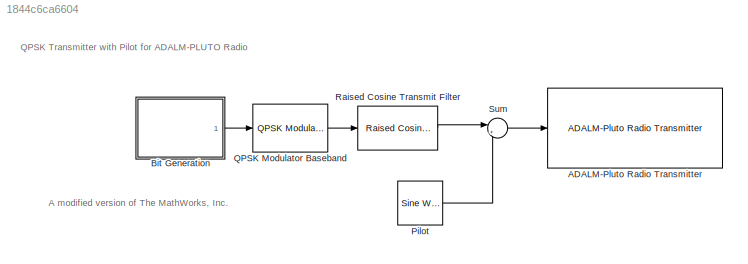
MODEL slx_1844c6ca6604
KIND model
CONFIG AbsTol = auto
CONFIG EnableMultiTasking = off
CONFIG FixedStep = auto
CONFIG InitFcn = sdrqpsktx = plutoradioqpsktransmitter_init;
CONFIG MaxStep = auto
CONFIG MinStep = auto
CONFIG PostLoadFcn = sdrqpsktx = plutoradioqpsktransmitter_init;
CONFIG RelTol = 1e-3
CONFIG SampleTimeConstraint = Unconstrained
CONFIG SolverName = FixedStepDiscrete
CONFIG StartTime = 0.0
CONFIG StopTime = inf
BLOCK [Reference] ADALM-Pluto Radio Transmitter  REF=plutoradiolib/ADALM-Pluto Radio
Transmitter
  Ports = [1]
  SourceBlock = plutoradiolib/ADALM-Pluto Radio\nTransmitter
  SourceProductBaseCode = PLUTO
  SourceType = comm.SDRTxPluto
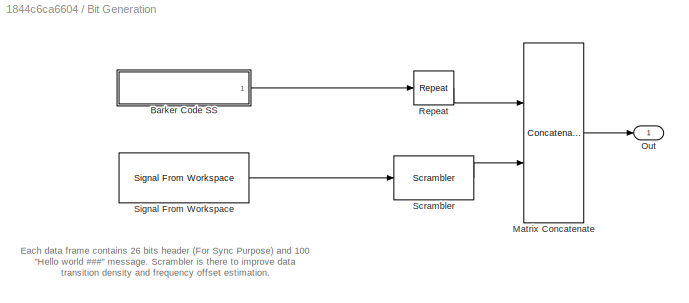
BLOCK [SubSystem] Bit Generation
  Ports = [0, 1]
  RequestExecContextInheritance = off
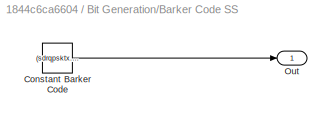
BLOCK [SubSystem] Bit Generation/Barker Code SS
  Ports = [0, 1]
  RequestExecContextInheritance = off
BLOCK [Constant] Bit Generation/Barker Code SS/Constant Barker Code
  OutDataTypeStr = double
  Value = (sdrqpsktx.BarkerCode)' > 0; % Bipolar to Unipolar
  VectorParams1D = off
BLOCK [Outport] Bit Generation/Barker Code SS/Out
  VectorParamsAs1DForOutWhenUnconnected = off
BLOCK [Concatenate] Bit Generation/Matrix Concatenate
  Mode = Multidimensional array
  Ports = [2, 1]
BLOCK [Outport] Bit Generation/Out
  VectorParamsAs1DForOutWhenUnconnected = off
BLOCK [Reference] Bit Generation/Repeat  REF=dspsigops/Repeat
  Ports = [1, 1]
  SourceBlock = dspsigops/Repeat
  SourceProductBaseCode = DS
  SourceType = Repeat
  UserDataPersistent = on
BLOCK [Reference] Bit Generation/Scrambler  REF=commsequence2/Scrambler
  Ports = [1, 1]
  SourceBlock = commsequence2/Scrambler
  SourceProductBaseCode = CM
  SourceType = Scrambler
BLOCK [Reference] Bit Generation/Signal From Workspace  REF=dspsrcs4/Signal From
Workspace
  Ports = [0, 1]
  SourceBlock = dspsrcs4/Signal From\nWorkspace
  SourceProductBaseCode = DS
  SourceType = Signal From Workspace
BLOCK [Reference] Pilot  REF=dspsrcs4/Sine Wave
  Ports = [0, 1]
  SourceBlock = dspsrcs4/Sine Wave
  SourceProductBaseCode = DS
  SourceType = Sine Wave
BLOCK [Reference] QPSK Modulator Baseband  REF=commdigbbndpm3/QPSK
Modulator
Baseband
  Ports = [1, 1]
  SourceBlock = commdigbbndpm3/QPSK\nModulator\nBaseband
  SourceProductBaseCode = CM
  SourceType = QPSK Modulator Baseband
BLOCK [Reference] Raised Cosine Transmit Filter  REF=commfilt2/Raised Cosine
Transmit Filter
  Ports = [1, 1]
  SourceBlock = commfilt2/Raised Cosine\nTransmit Filter
  SourceProductBaseCode = CM
  SourceType = Raised Cosine Transmit Filter
  UserDataPersistent = on
BLOCK [Sum] Sum
  Inputs = |++
  Ports = [2, 1]
ANNOTATION (root): A modified version of The MathWorks, Inc.
ANNOTATION (root): QPSK Transmitter with Pilot for ADALM-PLUTO Radio
ANNOTATION Bit Generation: Each data frame contains 26 bits header (For Sync Purpose) and 100 "Hello world ###" message. Scrambler is there to improve data transition density and frequency offset estimation.
LINE Bit Generation/Barker Code SS/Constant Barker Code:1 -> Bit Generation/Barker Code SS/Out:1
LINE Bit Generation/Barker Code SS:1 -> Bit Generation/Repeat:1
LINE Bit Generation/Matrix Concatenate:1 -> Bit Generation/Out:1
LINE Bit Generation/Repeat:1 -> Bit Generation/Matrix Concatenate:1
LINE Bit Generation/Scrambler:1 -> Bit Generation/Matrix Concatenate:2
LINE Bit Generation/Signal From Workspace:1 -> Bit Generation/Scrambler:1
LINE Bit Generation:1 -> QPSK Modulator Baseband:1
LINE Pilot:1 -> Sum:2
LINE QPSK Modulator Baseband:1 -> Raised Cosine Transmit Filter:1
LINE Raised Cosine Transmit Filter:1 -> Sum:1
LINE Sum:1 -> ADALM-Pluto Radio Transmitter:1
